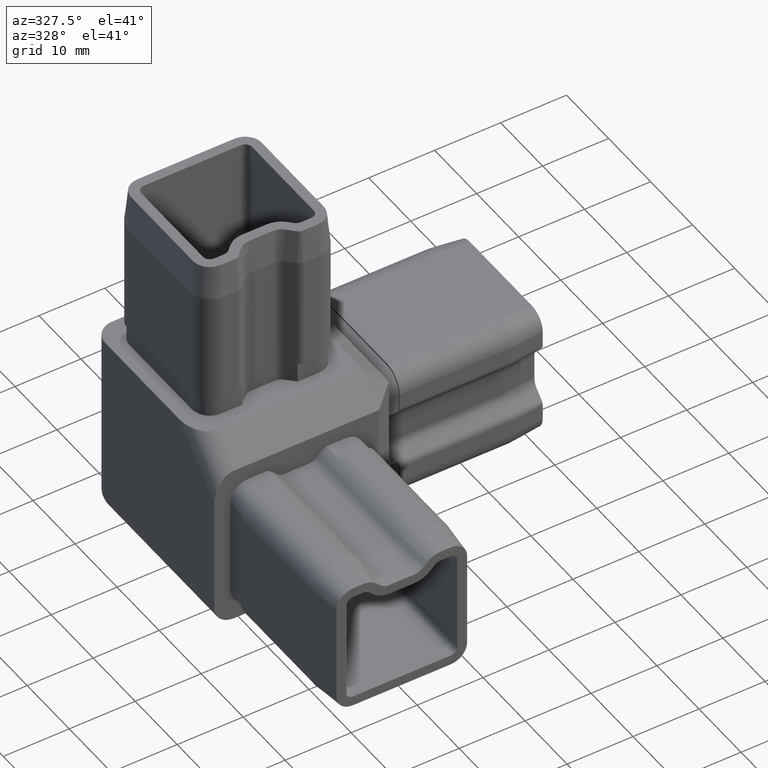
[diagram: clean part render]
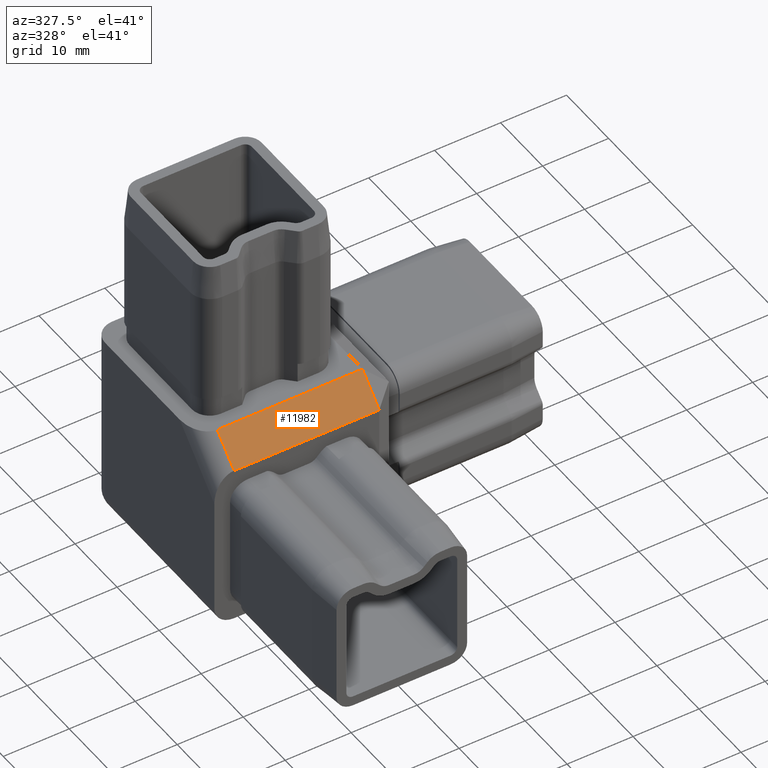
[diagram: same view with one face highlighted and labeled with its STEP entity id]
A machine part, auxiliary view. The second image highlights one B-rep face of the part: STEP entity #11982.
In plain terms, the highlighted planar face has unit normal (-0, -0.7071, 0.7071).
Its self-contained STEP definition (entity closure, byte-faithful):
#292 = CARTESIAN_POINT ( 'NONE',  ( 10.49999999999999100, -14.49999999999999800, 10.49999999999999100 ) ) ;
#421 = EDGE_CURVE ( 'NONE', #5828, #3113, #2376, .T. ) ;
#1244 = LINE ( 'NONE', #5634, #2494 ) ;
#1336 = EDGE_CURVE ( 'NONE', #14944, #3113, #14777, .T. ) ;
#1614 = ORIENTED_EDGE ( 'NONE', *, *, #1336, .F. ) ;
#2376 = LINE ( 'NONE', #9803, #13288 ) ;
#2476 = ORIENTED_EDGE ( 'NONE', *, *, #10141, .F. ) ;
#2494 = VECTOR ( 'NONE', #7032, 999.9999999999998900 ) ;
#3089 = FACE_OUTER_BOUND ( 'NONE', #14172, .T. ) ;
#3113 = VERTEX_POINT ( 'NONE', #9766 ) ;
#3756 = LINE ( 'NONE', #15653, #16418 ) ;
#5325 = PLANE ( 'NONE',  #14793 ) ;
#5573 = EDGE_CURVE ( 'NONE', #11172, #14944, #1244, .T. ) ;
#5634 = CARTESIAN_POINT ( 'NONE',  ( 10.49999999999999300, -12.49999999999999600, 12.49999999999999500 ) ) ;
#5828 = VERTEX_POINT ( 'NONE', #7077 ) ;
#7032 = DIRECTION ( 'NONE',  ( -1.222170170533687900E-015, -0.7071067811865469100, -0.7071067811865482400 ) ) ;
#7074 = VECTOR ( 'NONE', #8478, 1000.000000000000000 ) ;
#7077 = CARTESIAN_POINT ( 'NONE',  ( -11.50000000000000200, -10.49999999999999500, 14.50000000000000000 ) ) ;
#7222 = CARTESIAN_POINT ( 'NONE',  ( -14.50000000000000000, -14.49999999999999800, 10.49999999999999100 ) ) ;
#8478 = DIRECTION ( 'NONE',  ( -1.000000000000000000, 0.0000000000000000000, 0.0000000000000000000 ) ) ;
#9491 = ORIENTED_EDGE ( 'NONE', *, *, #421, .T. ) ;
#9628 = DIRECTION ( 'NONE',  ( 8.459549885149645200E-017, -0.7071067811865469100, -0.7071067811865482400 ) ) ;
#9766 = CARTESIAN_POINT ( 'NONE',  ( -11.50000000000000000, -14.49999999999999800, 10.49999999999999100 ) ) ;
#9803 = CARTESIAN_POINT ( 'NONE',  ( -11.50000000000000000, -14.49999999999999800, 10.49999999999999100 ) ) ;
#10141 = EDGE_CURVE ( 'NONE', #5828, #11172, #3756, .T. ) ;
#11172 = VERTEX_POINT ( 'NONE', #13287 ) ;
#11471 = DIRECTION ( 'NONE',  ( 1.000000000000000000, 0.0000000000000000000, 0.0000000000000000000 ) ) ;
#11982 = ADVANCED_FACE ( 'NONE', ( #3089 ), #5325, .T. ) ;
#12091 = CARTESIAN_POINT ( 'NONE',  ( 0.0000000000000000000, -10.49999999999999500, 14.50000000000000000 ) ) ;
#13287 = CARTESIAN_POINT ( 'NONE',  ( 10.49999999999999600, -10.49999999999999500, 14.50000000000000000 ) ) ;
#13288 = VECTOR ( 'NONE', #9628, 999.9999999999998900 ) ;
#14172 = EDGE_LOOP ( 'NONE', ( #2476, #9491, #1614, #15713 ) ) ;
#14777 = LINE ( 'NONE', #7222, #7074 ) ;
#14793 = AXIS2_PLACEMENT_3D ( 'NONE', #12091, #16286, #17584 ) ;
#14944 = VERTEX_POINT ( 'NONE', #292 ) ;
#15653 = CARTESIAN_POINT ( 'NONE',  ( 14.50000000000000000, -10.49999999999999500, 14.50000000000000000 ) ) ;
#15713 = ORIENTED_EDGE ( 'NONE', *, *, #5573, .F. ) ;
#16286 = DIRECTION ( 'NONE',  ( -0.0000000000000000000, -0.7071067811865481300, 0.7071067811865469100 ) ) ;
#16418 = VECTOR ( 'NONE', #11471, 1000.000000000000000 ) ;
#17584 = DIRECTION ( 'NONE',  ( -1.000000000000000000, 0.0000000000000000000, -0.0000000000000000000 ) ) ;